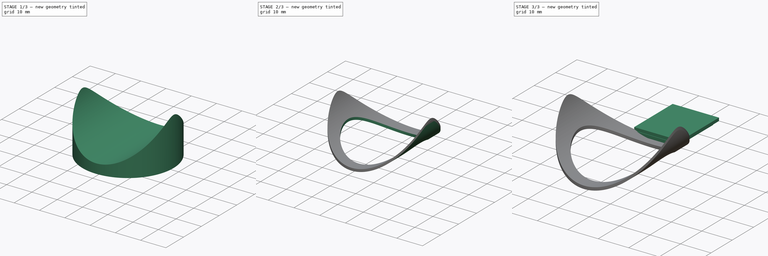
[diagram: build sequence overview — one tinted view per stage of 3, left to right]
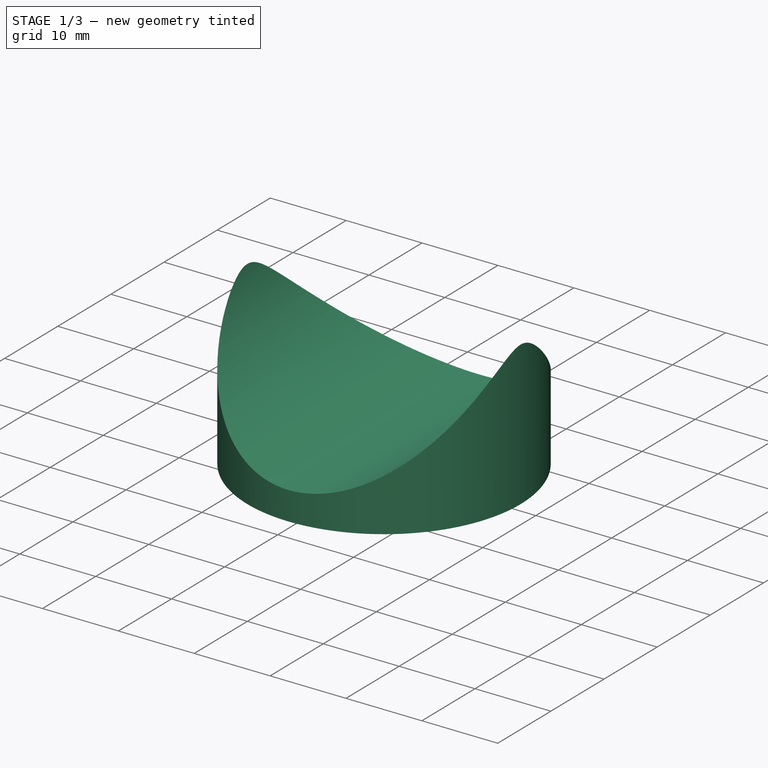
[diagram: stage 1 of 3 — iso view after this stage's code; geometry added in this stage tinted green]
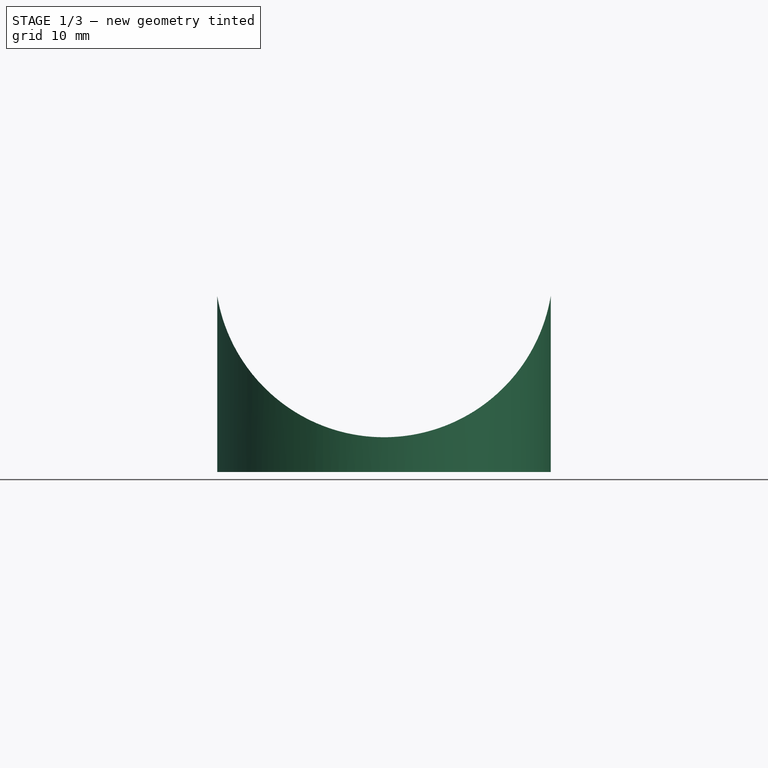
[diagram: stage 1 of 3 — front view after this stage's code; geometry added in this stage tinted green]
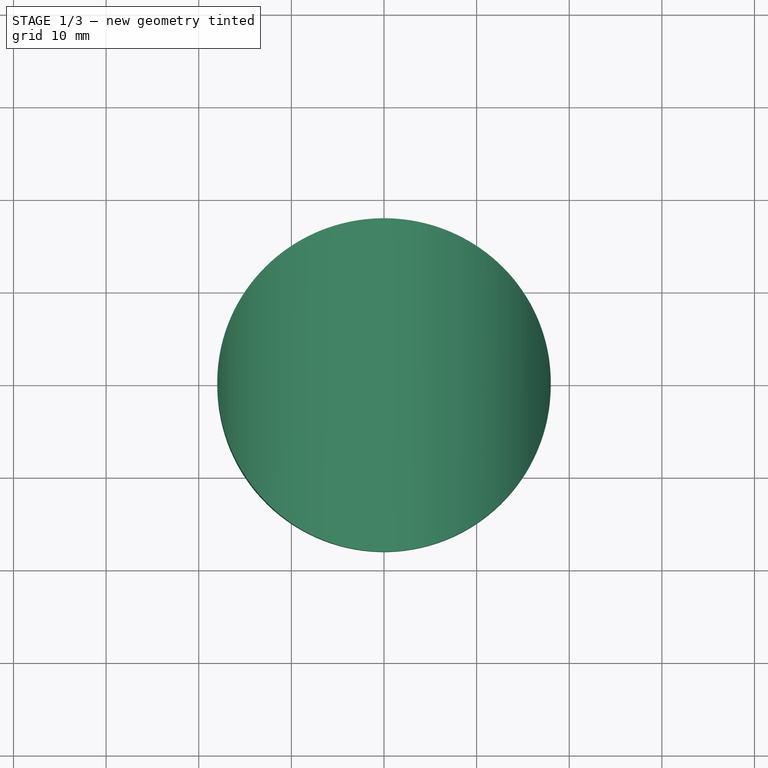
[diagram: stage 1 of 3 — top view after this stage's code; geometry added in this stage tinted green]
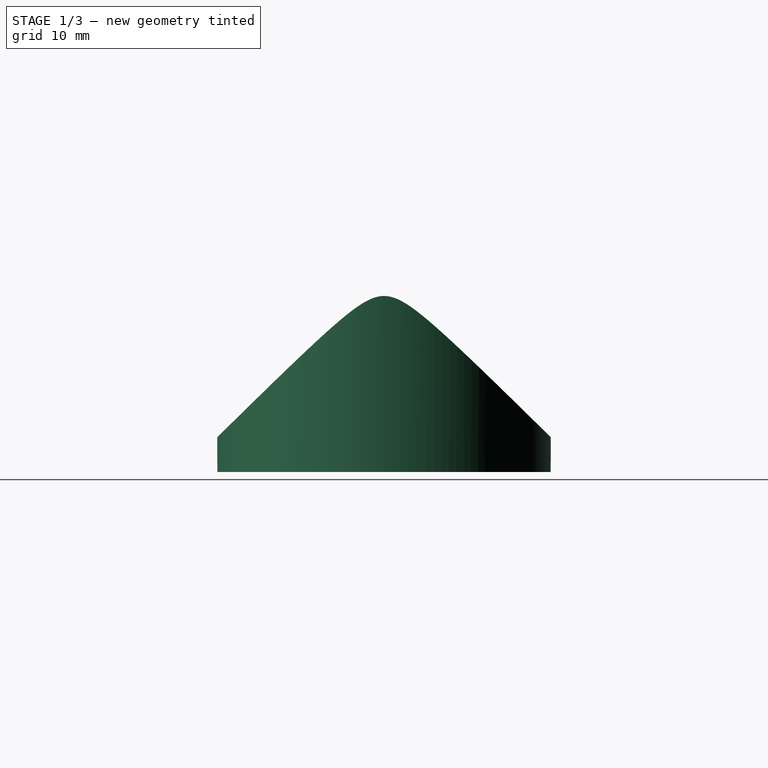
[diagram: stage 1 of 3 — right view after this stage's code; geometry added in this stage tinted green]
FCSTD DOCUMENT  (FreeCAD 0.19R24291 (Git))
Label: bruker7t_fus_single_coil_wrap2_cover
License: All rights reserved
LicenseURL: http://en.wikipedia.org/wiki/All_rights_reserved
objects: Sketcher::SketchObject×6, PartDesign::Pad×3, PartDesign::Pocket×3, PartDesign::Body×1
note: 19 computed .brp shape members not serialized (recipe doc carries the construction recipe); baked Part::Feature solids carry a one-line shape summary decoded from their .brp

FEATURE [Sketcher::SketchObject] Sketch
  FullyConstrained = true
  MapMode = 5
  Support = -> [XY_Plane]
  sketch-geometry (1):
    g0: Circle CenterX=0 CenterY=0 CenterZ=0 NormalX=0 NormalY=0 NormalZ=1 AngleXU=0 Radius=18
  constraints (2):
    c: Coincident(g0,g-1)
    c: Radius(g0) = 18
FEATURE [PartDesign::Pad] Pad
  Direction = (1,1,1)
  Length = 30
  Length2 = 100
  Profile = -> Sketch
  Refine = true
  Type = 0
FEATURE [Sketcher::SketchObject] Sketch013
  FullyConstrained = true
  MapMode = 5
  Placement = pos=(0,0,0) rot=(1,0,0;1.5708rad)
  Support = -> [XZ_Plane]
  sketch-geometry (4):
    g0: LineSegment StartX=-18 StartY=34 StartZ=0 EndX=18 EndY=34 EndZ=0
    g1: LineSegment StartX=18 StartY=34 StartZ=0 EndX=18 EndY=19 EndZ=0
    g2: ArcOfCircle CenterX=-1.1e-15 CenterY=22 CenterZ=0 NormalX=0 NormalY=0 NormalZ=1 AngleXU=0 Radius=18.2483 StartAngle=3.30674 EndAngle=6.11804
    g3: LineSegment StartX=-18 StartY=19 StartZ=0 EndX=-18 EndY=34 EndZ=0
  constraints (12):
    c: Coincident(g0,g1)
    c: Vertical(g1)
    c: Coincident(g3,g2)
    c: Coincident(g3,g0)
    c: Vertical(g3)
    c: Symmetric(g0,g0,g-2)
    c: Coincident(g1,g2)
    c: Equal(g1,g3)
    c: DistanceY(g-1,g1) = 19
    c: DistanceX(g0,g0) = 36
    c: DistanceY(g-1,g2) = 22
    c: DistanceY(g1,g1) = 15
FEATURE [PartDesign::Pocket] Pocket
  BaseFeature = -> Pad
  Length = 5
  Length2 = 100
  Midplane = true
  Profile = -> Sketch013
  Refine = true
  Type = 1
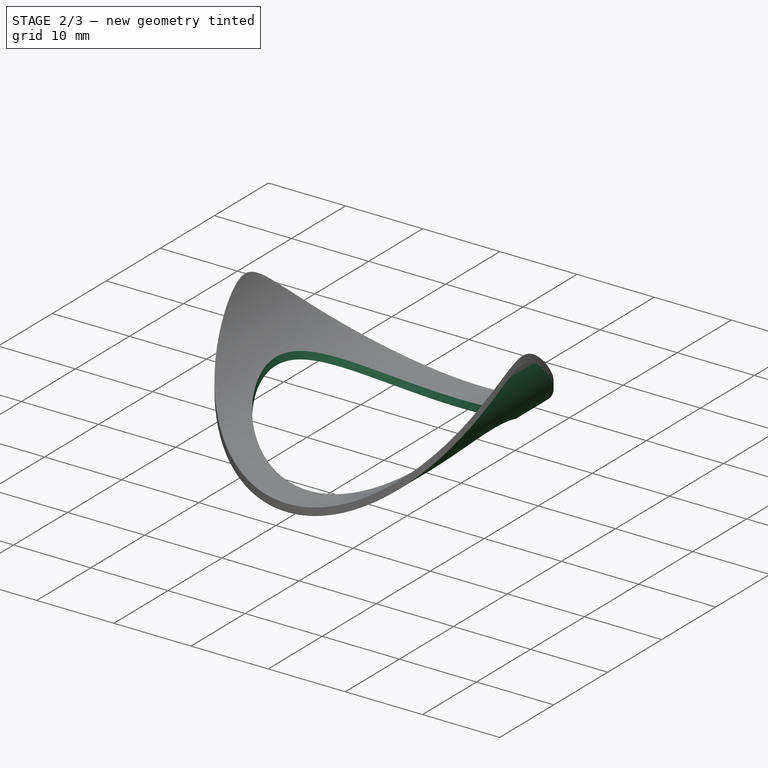
[diagram: stage 2 of 3 — iso view after this stage's code; geometry added in this stage tinted green]
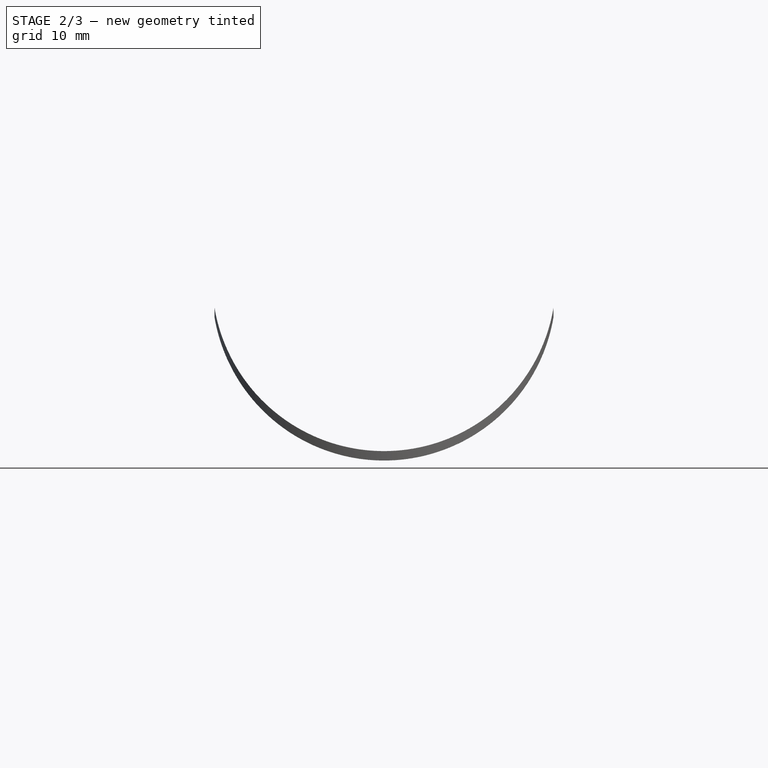
[diagram: stage 2 of 3 — front view after this stage's code; geometry added in this stage tinted green]
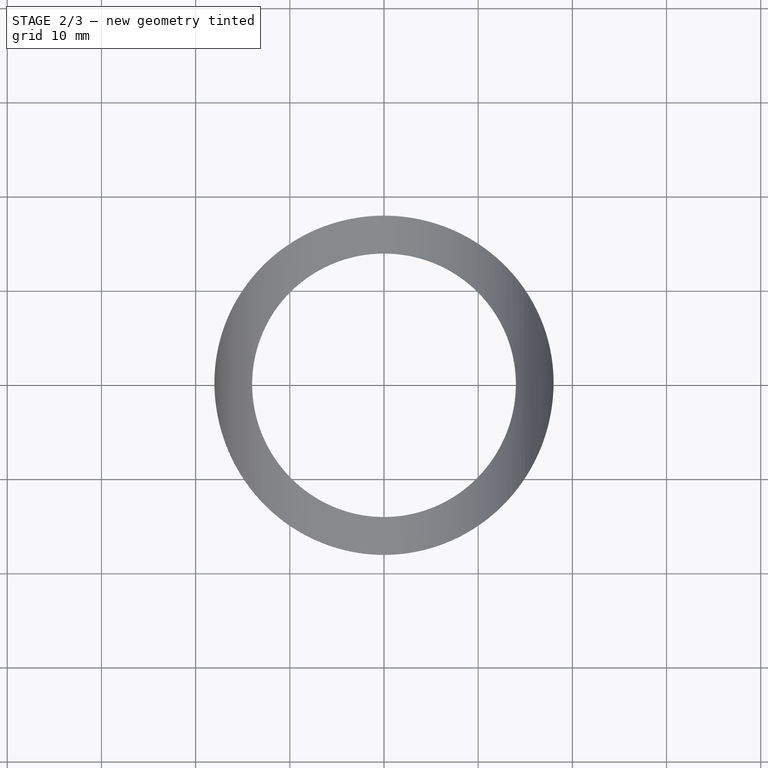
[diagram: stage 2 of 3 — top view after this stage's code; geometry added in this stage tinted green]
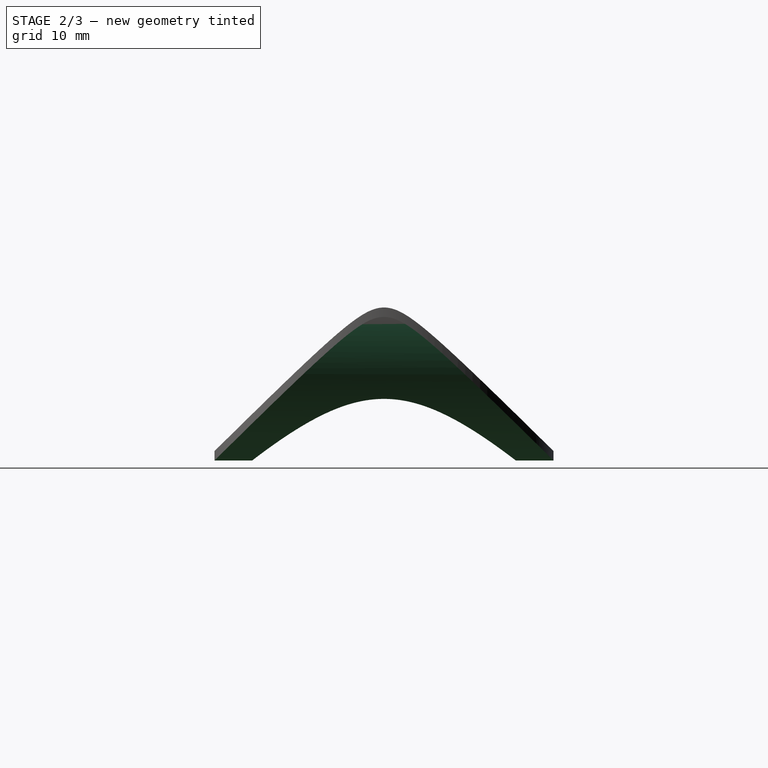
[diagram: stage 2 of 3 — right view after this stage's code; geometry added in this stage tinted green]
FEATURE [Sketcher::SketchObject] Sketch014
  FullyConstrained = true
  MapMode = 5
  Placement = pos=(0,0,0) rot=(1,0,0;1.5708rad)
  Support = -> [XZ_Plane]
  sketch-geometry (8):
    g0: LineSegment StartX=-18 StartY=34 StartZ=0 EndX=18 EndY=34 EndZ=0
    g1: LineSegment StartX=18 StartY=34 StartZ=0 EndX=18 EndY=19 EndZ=0
    g2: ArcOfCircle CenterX=2.5e-15 CenterY=22 CenterZ=0 NormalX=0 NormalY=0 NormalZ=1 AngleXU=0 Radius=18.2483 StartAngle=3.30674 EndAngle=6.11804
    g3: LineSegment StartX=-18 StartY=19 StartZ=0 EndX=-18 EndY=34 EndZ=0
    g4: LineSegment StartX=-18 StartY=0 StartZ=0 EndX=-18 EndY=18 EndZ=0
    g5: ArcOfCircle CenterX=0 CenterY=21 CenterZ=0 NormalX=0 NormalY=0 NormalZ=1 AngleXU=0 Radius=18.2483 StartAngle=3.30674 EndAngle=6.11804
    g6: LineSegment StartX=18 StartY=18 StartZ=0 EndX=18 EndY=0 EndZ=0
    g7: LineSegment StartX=18 StartY=0 StartZ=0 EndX=-18 EndY=0 EndZ=0
  constraints (24):
    c: Coincident(g0,g1)
    c: Vertical(g1)
    c: Coincident(g3,g2)
    c: Coincident(g3,g0)
    c: Vertical(g3)
    c: Symmetric(g0,g0,g-2)
    c: Coincident(g1,g2)
    c: Equal(g1,g3)
    c: DistanceY(g-1,g1) = 19
    c: DistanceX(g0,g0) = 36
    c: DistanceY(g-1,g2) = 22
    c: DistanceY(g1,g1) = 15
    c: PointOnObject(g4,g-1)
    c: Vertical(g4)
    c: PointOnObject(g5,g-2)
    c: Coincident(g5,g4)
    c: Coincident(g6,g5)
    c: Vertical(g6)
    c: Coincident(g7,g6)
    c: Coincident(g7,g4)
    c: Symmetric(g6,g4,g-2)
    c: DistanceX(g7,g7) = 36
    c: DistanceY(g5,g1) = 1
    c: DistanceY(g5,g2) = 1
FEATURE [PartDesign::Pocket] Pocket001
  BaseFeature = -> Pocket
  Length = 5
  Length2 = 100
  Midplane = true
  Profile = -> Sketch014
  Refine = true
  Type = 1
FEATURE [Sketcher::SketchObject] Sketch015
  FullyConstrained = true
  MapMode = 5
  Support = -> [XY_Plane]
  sketch-geometry (1):
    g0: Circle CenterX=0 CenterY=0 CenterZ=0 NormalX=0 NormalY=0 NormalZ=1 AngleXU=0 Radius=14
  constraints (2):
    c: Coincident(g0,g-1)
    c: Radius(g0) = 14
FEATURE [PartDesign::Pocket] Pocket002
  BaseFeature = -> Pocket001
  Length = 5
  Length2 = 100
  Midplane = true
  Profile = -> Sketch015
  Refine = true
  Type = 1
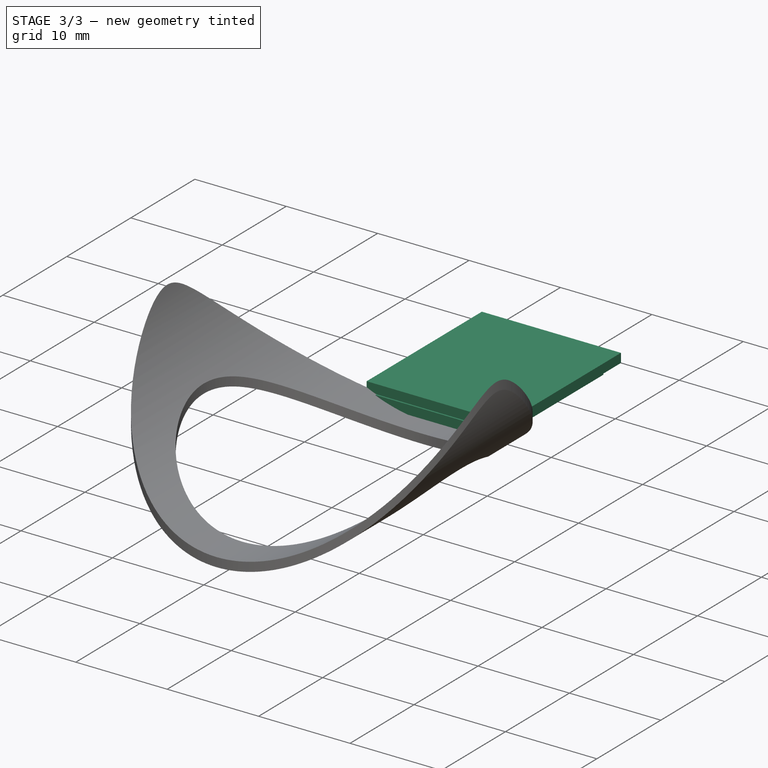
[diagram: stage 3 of 3 — iso view after this stage's code; geometry added in this stage tinted green]
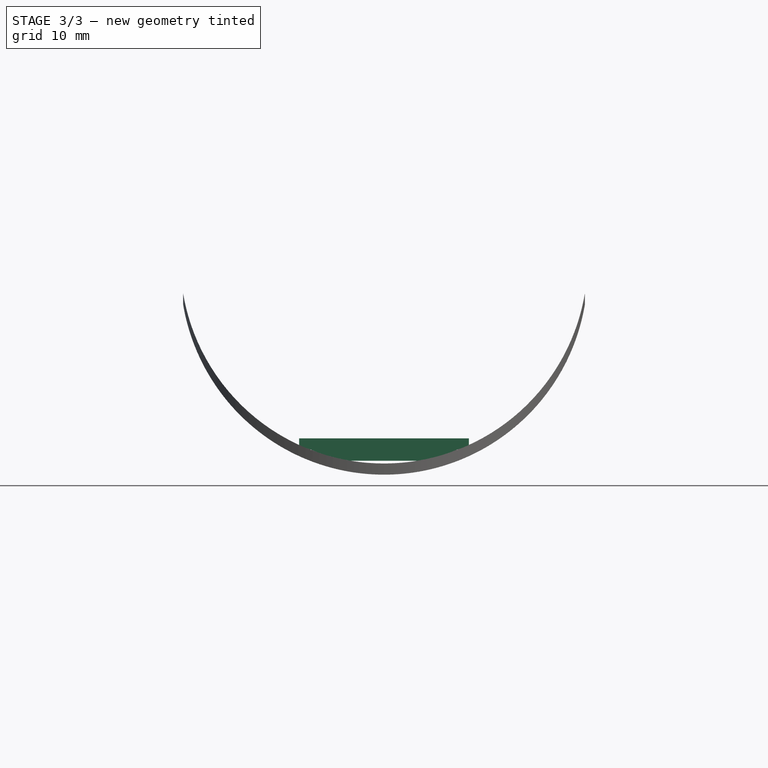
[diagram: stage 3 of 3 — front view after this stage's code; geometry added in this stage tinted green]
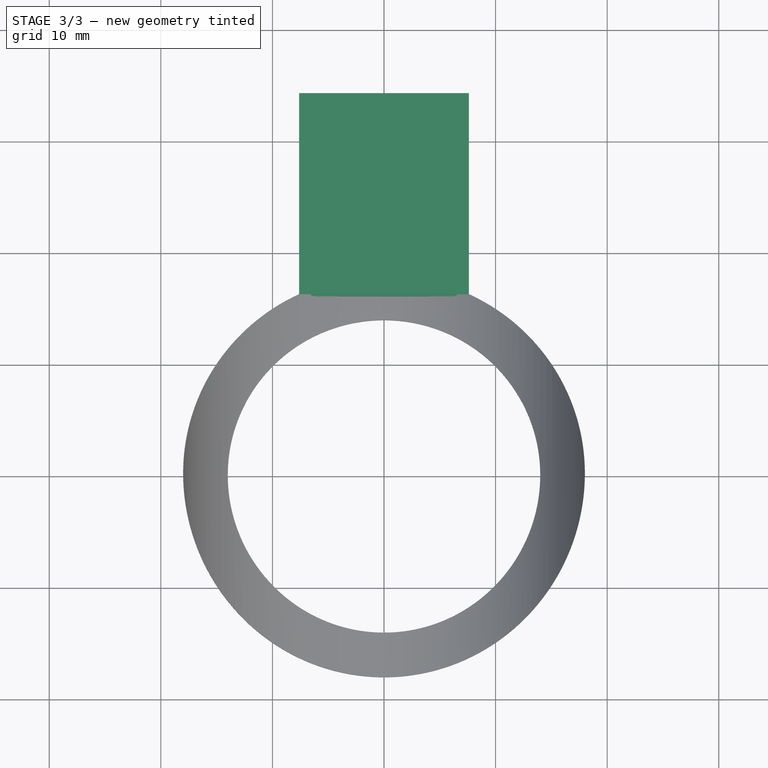
[diagram: stage 3 of 3 — top view after this stage's code; geometry added in this stage tinted green]
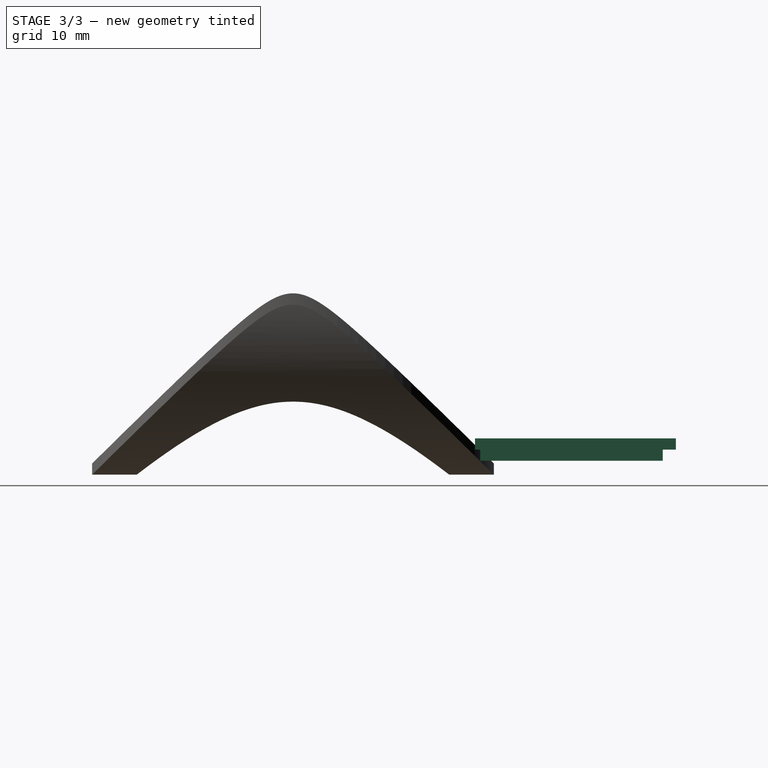
[diagram: stage 3 of 3 — right view after this stage's code; geometry added in this stage tinted green]
FEATURE [Sketcher::SketchObject] Sketch016
  AttachmentOffset = pos=(0,0,5) rot=(0,0,1;0rad)
  FullyConstrained = true
  MapMode = 5
  Placement = pos=(0,0,5) rot=(0,0,1;0rad)
  Support = -> [XY_Plane]
  sketch-geometry (5):
    g0: LineSegment StartX=-7.60713 StartY=34.3135 StartZ=0 EndX=7.60713 EndY=34.3135 EndZ=0
    g1: LineSegment StartX=7.60713 StartY=34.3135 StartZ=0 EndX=7.60713 EndY=16.3135 EndZ=0
    g2: LineSegment StartX=7.60713 StartY=16.3135 StartZ=0 EndX=-7.60713 EndY=16.3135 EndZ=0
    g3: LineSegment StartX=-7.60713 StartY=16.3135 StartZ=0 EndX=-7.60713 EndY=34.3135 EndZ=0
    g4: LineSegment StartX=-7.60713 StartY=16.3135 StartZ=0 EndX=0 EndY=0 EndZ=0
  constraints (13):
    c: Coincident(g0,g1)
    c: Coincident(g1,g2)
    c: Coincident(g2,g3)
    c: Coincident(g3,g0)
    c: Horizontal(g2)
    c: Vertical(g1)
    c: Vertical(g3)
    c: DistanceY(g3,g3) = 18
    c: Coincident(g4,g2)
    c: Coincident(g4,g-1)
    c: Distance(g4) = 18
    c: Angle(g-2,g4) = 0.436332
    c: Symmetric(g0,g0,g-2)
FEATURE [PartDesign::Pad] Pad001
  BaseFeature = -> Pocket002
  Direction = (1,1,1)
  Length = 1
  Length2 = 100
  Profile = -> Sketch016
  Refine = true
  Type = 0
FEATURE [Sketcher::SketchObject] Sketch017
  AttachmentOffset = pos=(0,0,5) rot=(0,0,1;0rad)
  FullyConstrained = true
  MapMode = 5
  Placement = pos=(0,0,5) rot=(0,0,1;0rad)
  Support = -> [XY_Plane]
  sketch-geometry (5):
    g0: LineSegment StartX=-6.51815 StartY=33.133 StartZ=0 EndX=6.51815 EndY=33.133 EndZ=0
    g1: LineSegment StartX=6.51815 StartY=33.133 StartZ=0 EndX=6.51815 EndY=16.133 EndZ=0
    g2: LineSegment StartX=6.51815 StartY=16.133 StartZ=0 EndX=-6.51815 EndY=16.133 EndZ=0
    g3: LineSegment StartX=-6.51815 StartY=16.133 StartZ=0 EndX=-6.51815 EndY=33.133 EndZ=0
    g4: LineSegment StartX=-6.51815 StartY=16.133 StartZ=0 EndX=0 EndY=0 EndZ=0
  constraints (13):
    c: Coincident(g0,g1)
    c: Coincident(g1,g2)
    c: Coincident(g2,g3)
    c: Coincident(g3,g0)
    c: Horizontal(g2)
    c: Vertical(g1)
    c: Vertical(g3)
    c: DistanceY(g3,g3) = 17
    c: Coincident(g4,g2)
    c: Coincident(g4,g-1)
    c: Distance(g4) = 17.4
    c: Angle(g-2,g4) = 0.383972
    c: Symmetric(g0,g0,g-2)
FEATURE [PartDesign::Pad] Pad002
  BaseFeature = -> Pad001
  Direction = (1,1,1)
  Length = 1
  Length2 = 100
  Profile = -> Sketch017
  Refine = true
  Reversed = true
  Type = 0
FEATURE [PartDesign::Body] Body
  Group = -> [Sketch,Pad,Sketch013,Pocket,Sketch014,Pocket001,Sketch015,Pocket002,Sketch016,Pad001,Sketch017,Pad002]
  Origin = -> Origin
  Tip = -> Pad002
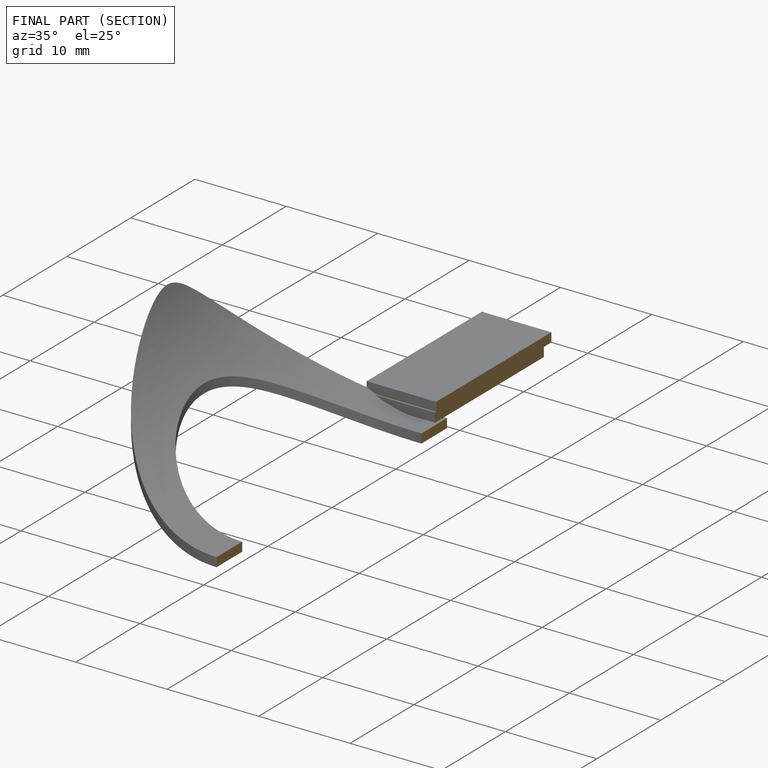
[diagram: finished part — half-section view (interior)]
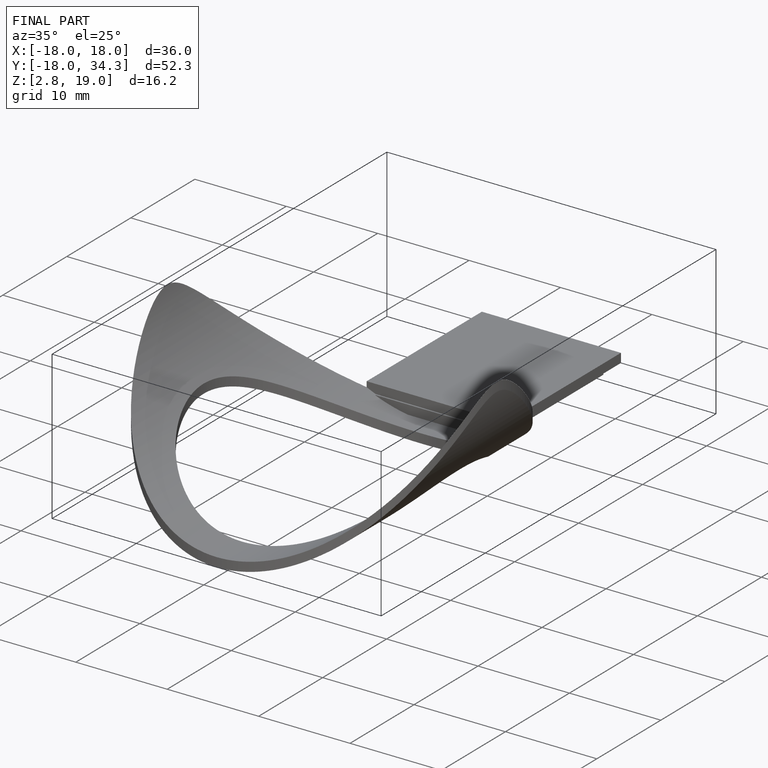
[diagram: finished part — iso view with bounding-box wireframe]
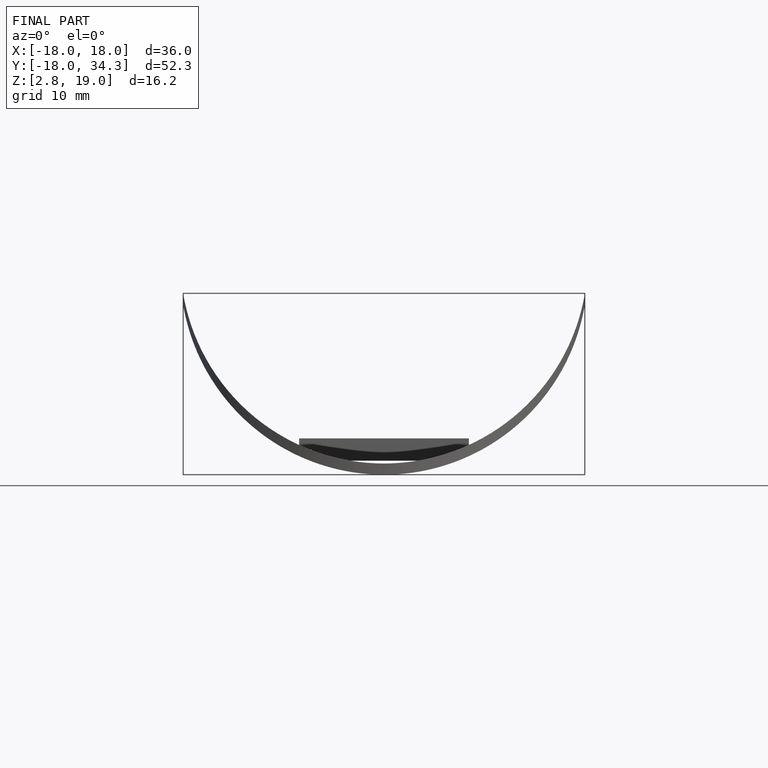
[diagram: finished part — front view with bounding-box wireframe]
